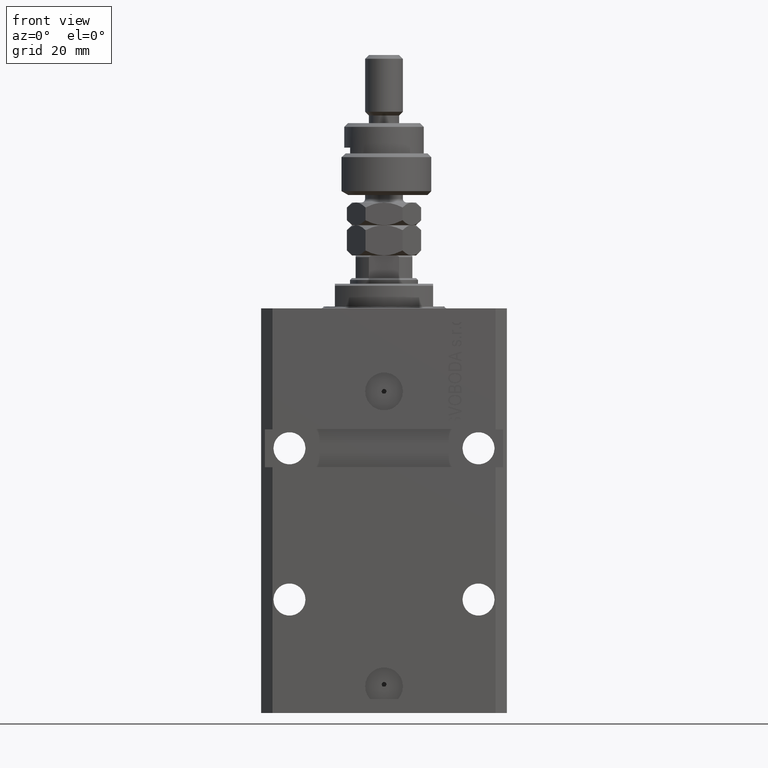
[diagram: clean part render]
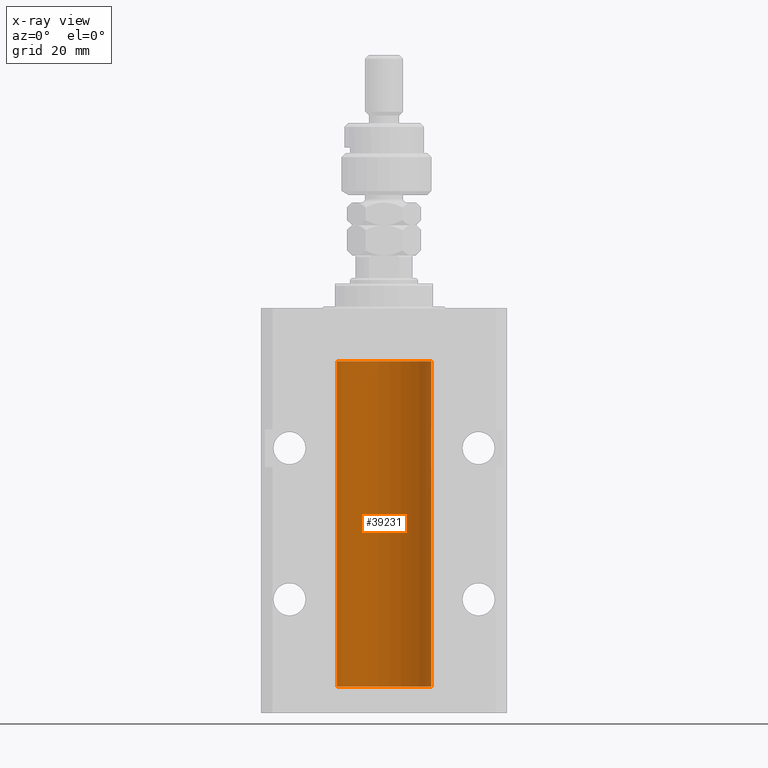
[diagram: x-ray — body ghosted, one internal face saturated and labeled with its STEP entity id]
A machine part, front view, then the same camera in x-ray: the body is ghosted and one INTERNAL B-rep face — a face not visible from any outside direction — is saturated and labeled: STEP entity #39231.
In plain terms, the highlighted cylindrical surface (partial cylindrical patch) has radius 12.5 mm, axis along (0, 0, 1).
Its self-contained STEP definition (entity closure, byte-faithful):
#350 = ORIENTED_EDGE ( 'NONE', *, *, #605, .T. ) ;
#448 = CARTESIAN_POINT ( 'NONE',  ( 0.000000000000000000, 0.000000000000000000, -100.0999999999999943 ) ) ;
#605 = EDGE_CURVE ( 'NONE', #41377, #43672, #18268, .T. ) ;
#1135 = CARTESIAN_POINT ( 'NONE',  ( -12.50000000000000000, 1.530808498934191521E-15, -100.0999999999999943 ) ) ;
#1456 = CARTESIAN_POINT ( 'NONE',  ( -12.50000000000000000, -1.522152011595579853E-14, -94.37500000000000000 ) ) ;
#1500 = VERTEX_POINT ( 'NONE', #9680 ) ;
#2126 = CARTESIAN_POINT ( 'NONE',  ( -12.49999999999999112, 0.1631761135151224562, -95.62499999999980105 ) ) ;
#2487 = CARTESIAN_POINT ( 'NONE',  ( -12.48520330846397819, 0.6088355886774127201, -22.16325431852561323 ) ) ;
#2585 = VERTEX_POINT ( 'NONE', #16952 ) ;
#2630 = CARTESIAN_POINT ( 'NONE',  ( -12.49915784441387068, 0.1636601911727894876, -94.39126818989429069 ) ) ;
#3757 = CARTESIAN_POINT ( 'NONE',  ( -12.49011732893843529, 0.5003763274120274218, -22.38348111289287701 ) ) ;
#4016 = DIRECTION ( 'NONE',  ( 0.000000000000000000, 0.000000000000000000, 1.000000000000000000 ) ) ;
#5204 = DIRECTION ( 'NONE',  ( -0.000000000000000000, -0.000000000000000000, 1.000000000000000000 ) ) ;
#5365 = VERTEX_POINT ( 'NONE', #6047 ) ;
#6047 = CARTESIAN_POINT ( 'NONE',  ( -12.50000000000000000, -2.089494013101375120E-17, -21.37499999999999645 ) ) ;
#6394 = ORIENTED_EDGE ( 'NONE', *, *, #11875, .F. ) ;
#6461 = CARTESIAN_POINT ( 'NONE',  ( -12.50000000000000000, -1.522152011595579853E-14, -94.37500000000000000 ) ) ;
#6726 = DIRECTION ( 'NONE',  ( -0.000000000000000000, -0.000000000000000000, 1.000000000000000000 ) ) ;
#6826 = CARTESIAN_POINT ( 'NONE',  ( -12.48809959379011403, 0.5462151254764975317, -22.31461370481611795 ) ) ;
#7024 = DIRECTION ( 'NONE',  ( -0.000000000000000000, -0.000000000000000000, 1.000000000000000000 ) ) ;
#7564 = CARTESIAN_POINT ( 'NONE',  ( -12.50000000000000000, 1.530808498934191521E-15, -13.99999999999999822 ) ) ;
#7820 = ORIENTED_EDGE ( 'NONE', *, *, #48182, .F. ) ;
#9680 = CARTESIAN_POINT ( 'NONE',  ( -12.50000000000000000, 1.530808498934191521E-15, -100.0999999999999943 ) ) ;
#9894 = CARTESIAN_POINT ( 'NONE',  ( 12.50000000000000000, 0.000000000000000000, -13.99999999999999822 ) ) ;
#10160 = CARTESIAN_POINT ( 'NONE',  ( -12.48810268015257563, 0.5573155909661349217, -21.67347410093867666 ) ) ;
#10853 = EDGE_CURVE ( 'NONE', #43672, #49344, #35296, .T. ) ;
#11554 = VECTOR ( 'NONE', #5204, 1000.000000000000000 ) ;
#11875 = EDGE_CURVE ( 'NONE', #5365, #49344, #25008, .T. ) ;
#11926 = ORIENTED_EDGE ( 'NONE', *, *, #46329, .F. ) ;
#12190 = CARTESIAN_POINT ( 'NONE',  ( 0.000000000000000000, 0.000000000000000000, -13.99999999999999822 ) ) ;
#13019 = CARTESIAN_POINT ( 'NONE',  ( -12.50000000000017941, 3.883381774819353300E-13, -95.62500000000359535 ) ) ;
#13378 = CARTESIAN_POINT ( 'NONE',  ( -12.48809959379011403, 0.5462151254764922026, -95.31461370481613926 ) ) ;
#13735 = CARTESIAN_POINT ( 'NONE',  ( -12.50000000000000000, -2.089494013101375120E-17, -21.37499999999999645 ) ) ;
#14128 = CARTESIAN_POINT ( 'NONE',  ( -12.49625855304194033, 0.3150454781037993479, -94.45402800297488000 ) ) ;
#15329 = ORIENTED_EDGE ( 'NONE', *, *, #17751, .F. ) ;
#16910 = EDGE_LOOP ( 'NONE', ( #11926, #7820, #350, #20114, #6394, #28363, #15329, #20883 ) ) ;
#16952 = CARTESIAN_POINT ( 'NONE',  ( -12.50000000000017941, 3.883381646606358354E-13, -22.62500000000358824 ) ) ;
#17203 = CARTESIAN_POINT ( 'NONE',  ( -12.48436813453758631, 0.6249418250771134886, -94.83668996798924411 ) ) ;
#17751 = EDGE_CURVE ( 'NONE', #49111, #2585, #24376, .T. ) ;
#18268 = LINE ( 'NONE', #30031, #48909 ) ;
#19332 = CARTESIAN_POINT ( 'NONE',  ( -12.50000000000017941, 3.883381646606358354E-13, -22.62500000000358824 ) ) ;
#20114 = ORIENTED_EDGE ( 'NONE', *, *, #10853, .T. ) ;
#20521 = LINE ( 'NONE', #37109, #11554 ) ;
#20883 = ORIENTED_EDGE ( 'NONE', *, *, #23959, .T. ) ;
#21176 = DIRECTION ( 'NONE',  ( -0.000000000000000000, -0.000000000000000000, 1.000000000000000000 ) ) ;
#21664 = VECTOR ( 'NONE', #27719, 1000.000000000000000 ) ;
#21888 = CARTESIAN_POINT ( 'NONE',  ( -12.48436813453758454, 0.6249418250771192618, -21.83668996798922635 ) ) ;
#22393 = CARTESIAN_POINT ( 'NONE',  ( -12.49999999999999289, 0.1631761135151241215, -22.62499999999984013 ) ) ;
#23089 = VECTOR ( 'NONE', #21176, 1000.000000000000000 ) ;
#23798 = CARTESIAN_POINT ( 'NONE',  ( 12.50000000000000000, 0.000000000000000000, -100.0999999999999943 ) ) ;
#23959 = EDGE_CURVE ( 'NONE', #49111, #25068, #43642, .T. ) ;
#24376 = LINE ( 'NONE', #1135, #21664 ) ;
#24764 = CARTESIAN_POINT ( 'NONE',  ( -12.50000000000000000, 1.530808498934191521E-15, -100.0999999999999943 ) ) ;
#25008 = LINE ( 'NONE', #24764, #23089 ) ;
#25068 = VERTEX_POINT ( 'NONE', #13019 ) ;
#25488 = CARTESIAN_POINT ( 'NONE',  ( -12.49915784441386890, 0.1636601911727947889, -21.39126818989430490 ) ) ;
#25890 = CARTESIAN_POINT ( 'NONE',  ( -12.49631005746706514, 0.3253680783018457756, -95.55856740465388555 ) ) ;
#26151 = FACE_OUTER_BOUND ( 'NONE', #16910, .T. ) ;
#26296 = EDGE_CURVE ( 'NONE', #5365, #2585, #28788, .T. ) ;
#26317 = AXIS2_PLACEMENT_3D ( 'NONE', #12190, #4016, #46665 ) ;
#27719 = DIRECTION ( 'NONE',  ( -0.000000000000000000, -0.000000000000000000, 1.000000000000000000 ) ) ;
#28363 = ORIENTED_EDGE ( 'NONE', *, *, #26296, .T. ) ;
#28788 = B_SPLINE_CURVE_WITH_KNOTS ( 'NONE', 3,
 ( #13735, #29321, #25488, #29579, #45147, #10160, #21888, #37475, #2487, #6826, #3757, #34411, #22393, #19332 ),
 .UNSPECIFIED., .F., .F.,
 ( 4, 2, 2, 2, 2, 2, 4 ),
 ( 2.030551168097110502E-20, 0.0002442924852390969078, 0.0004885849704781938157, 0.0009771699409563880650, 0.001221462426195485135, 0.001465754911434582423, 0.001954339881912776130 ),
 .UNSPECIFIED. ) ;
#29321 = CARTESIAN_POINT ( 'NONE',  ( -12.50000000000000000, 0.08260426088729219685, -21.37500000000000000 ) ) ;
#29579 = CARTESIAN_POINT ( 'NONE',  ( -12.49625855304193678, 0.3150454781038042329, -21.45402800297484802 ) ) ;
#29725 = CARTESIAN_POINT ( 'NONE',  ( -12.48520330846397997, 0.6088355886774070580, -95.16325431852561678 ) ) ;
#29977 = CARTESIAN_POINT ( 'NONE',  ( -12.50000000000017941, 3.883381774819353300E-13, -95.62500000000359535 ) ) ;
#30031 = CARTESIAN_POINT ( 'NONE',  ( 12.50000000000000000, 0.000000000000000000, -100.0999999999999943 ) ) ;
#30229 = CARTESIAN_POINT ( 'NONE',  ( 0.000000000000000000, 0.000000000000000000, -100.0999999999999943 ) ) ;
#31898 = AXIS2_PLACEMENT_3D ( 'NONE', #448, #43614, #35955 ) ;
#33795 = CARTESIAN_POINT ( 'NONE',  ( -12.48436376893640620, 0.6250290278979871994, -95.08132082824478459 ) ) ;
#34411 = CARTESIAN_POINT ( 'NONE',  ( -12.49631005746706336, 0.3253680783018528255, -22.55856740465392463 ) ) ;
#35296 = CIRCLE ( 'NONE', #26317, 12.50000000000000000 ) ;
#35955 = DIRECTION ( 'NONE',  ( 1.000000000000000000, 0.000000000000000000, 0.000000000000000000 ) ) ;
#37109 = CARTESIAN_POINT ( 'NONE',  ( -12.50000000000000000, 1.530808498934191521E-15, -100.0999999999999943 ) ) ;
#37475 = CARTESIAN_POINT ( 'NONE',  ( -12.48436376893640443, 0.6250290278979917513, -22.08132082824473486 ) ) ;
#37565 = CIRCLE ( 'NONE', #31898, 12.50000000000000000 ) ;
#37617 = CARTESIAN_POINT ( 'NONE',  ( -12.50000000000000000, 0.08260426088727994276, -94.37499999999998579 ) ) ;
#38382 = DIRECTION ( 'NONE',  ( 1.000000000000000000, 0.000000000000000000, 0.000000000000000000 ) ) ;
#39231 = ADVANCED_FACE ( 'NONE', ( #26151 ), #42217, .F. ) ;
#41377 = VERTEX_POINT ( 'NONE', #23798 ) ;
#42217 = CYLINDRICAL_SURFACE ( 'NONE', #43921, 12.50000000000000000 ) ;
#43614 = DIRECTION ( 'NONE',  ( 0.000000000000000000, 0.000000000000000000, 1.000000000000000000 ) ) ;
#43642 = B_SPLINE_CURVE_WITH_KNOTS ( 'NONE', 3,
 ( #6461, #37617, #2630, #14128, #48359, #48613, #17203, #33795, #29725, #13378, #49367, #25890, #2126, #29977 ),
 .UNSPECIFIED., .F., .F.,
 ( 4, 2, 2, 2, 2, 2, 4 ),
 ( 3.486178718436696769E-18, 0.0002442924852390829216, 0.0004885849704781623738, 0.0009771699409563507684, 0.001221462426195465403, 0.001465754911434580254, 0.001954339881912780900 ),
 .UNSPECIFIED. ) ;
#43672 = VERTEX_POINT ( 'NONE', #9894 ) ;
#43921 = AXIS2_PLACEMENT_3D ( 'NONE', #30229, #6726, #38382 ) ;
#45147 = CARTESIAN_POINT ( 'NONE',  ( -12.49422197749724006, 0.3843754434364375916, -21.50047099568095277 ) ) ;
#46329 = EDGE_CURVE ( 'NONE', #1500, #25068, #20521, .T. ) ;
#46665 = DIRECTION ( 'NONE',  ( 1.000000000000000000, 0.000000000000000000, 0.000000000000000000 ) ) ;
#48182 = EDGE_CURVE ( 'NONE', #41377, #1500, #37565, .T. ) ;
#48359 = CARTESIAN_POINT ( 'NONE',  ( -12.49422197749723829, 0.3843754434364257122, -94.50047099568094211 ) ) ;
#48613 = CARTESIAN_POINT ( 'NONE',  ( -12.48810268015257741, 0.5573155909661239304, -94.67347410093871929 ) ) ;
#48909 = VECTOR ( 'NONE', #7024, 1000.000000000000000 ) ;
#49111 = VERTEX_POINT ( 'NONE', #1456 ) ;
#49344 = VERTEX_POINT ( 'NONE', #7564 ) ;
#49367 = CARTESIAN_POINT ( 'NONE',  ( -12.49011732893843529, 0.5003763274120199833, -95.38348111289285214 ) ) ;